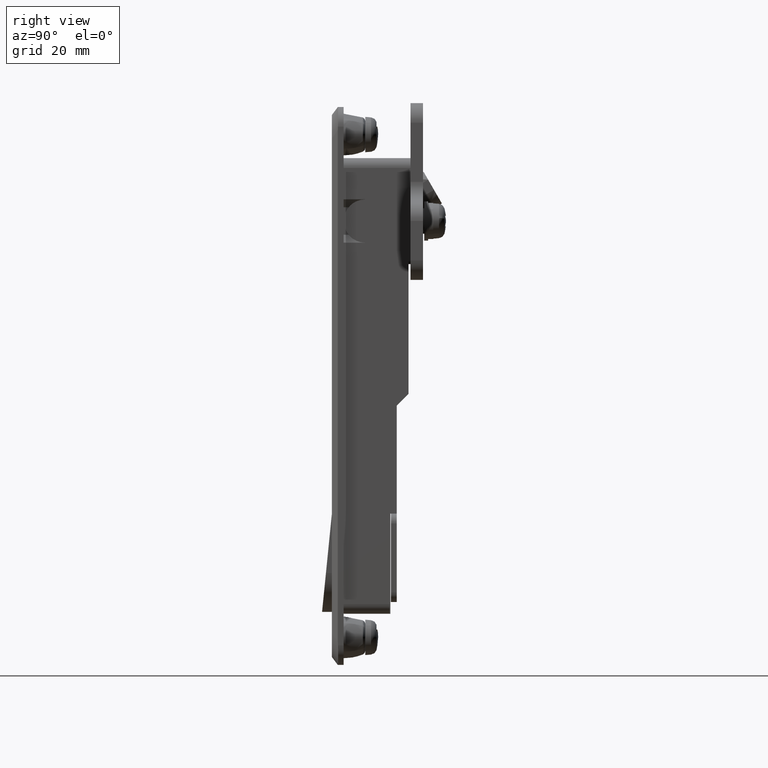
[diagram: clean part render]
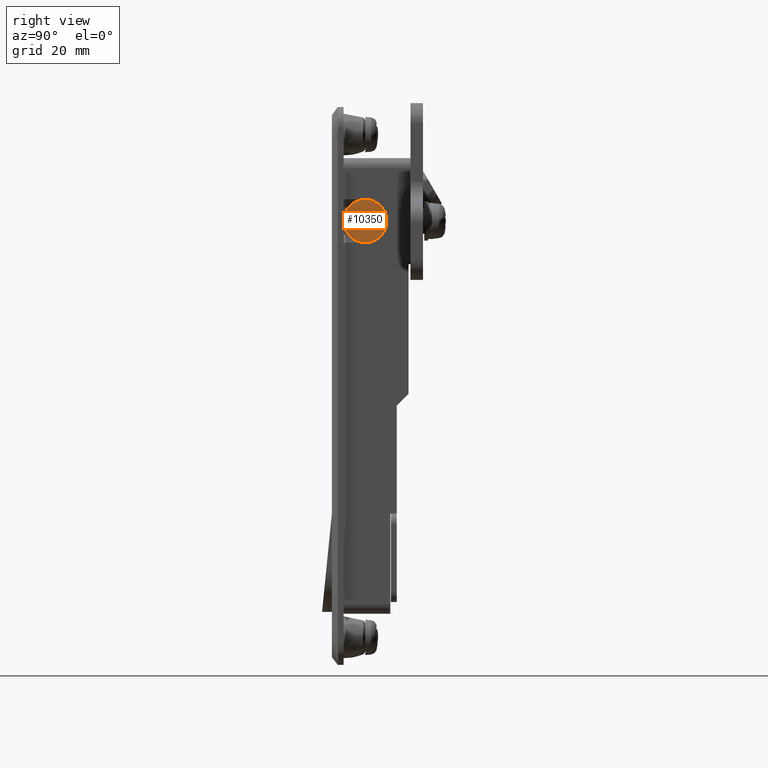
[diagram: same view with one face highlighted and labeled with its STEP entity id]
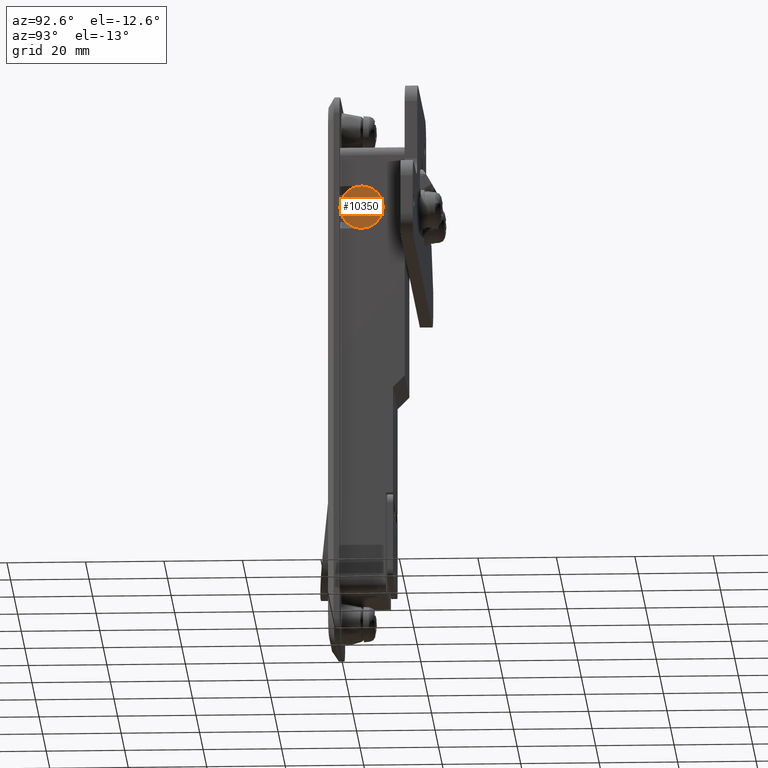
[diagram: same view with one face highlighted and labeled with its STEP entity id]
A machine part, right view. The second image highlights one B-rep face of the part: STEP entity #10350.
A second angle (auxiliary view) of the same face is appended — the face is thin or edge-on in the first view.
In plain terms, the highlighted face is a freeform B-spline surface patch.
Its self-contained STEP definition (entity closure, byte-faithful):
#10195=CARTESIAN_POINT('',(1.714050279736321,-13.0,-18.010441177057778));
#10196=VERTEX_POINT('',#10195);
#10202=CARTESIAN_POINT('',(5.500000000000200,-13.0,-16.500000000000000));
#10203=VERTEX_POINT('',#10202);
#10204=CARTESIAN_POINT('',(5.500000000000200,-13.0,-16.500000000000000));
#10205=CARTESIAN_POINT('',(5.065020151744795,-13.0,-16.499910231768670));
#10206=CARTESIAN_POINT('',(4.238634123952902,-13.000000000000011,-16.598554810251262));
#10207=CARTESIAN_POINT('',(2.920766175411349,-13.000000000000011,-17.070633883945121));
#10208=CARTESIAN_POINT('',(2.124046577551451,-12.999999999999989,-17.620962483432319));
#10209=CARTESIAN_POINT('',(1.714050279736321,-13.0,-18.010441177057778));
#10210=B_SPLINE_CURVE_WITH_KNOTS('',3,(#10204,#10205,#10206,#10207,#10208,#10209),.UNSPECIFIED.,.F.,.U.,(4,1,1,4),(0.000000047043503,1.304921350460602,2.479323922983845,4.175724368367582),.UNSPECIFIED.);
#10211=EDGE_CURVE('',#10203,#10196,#10210,.T.);
#10213=CARTESIAN_POINT('',(10.999999999999890,-13.0,-21.999998137841509));
#10214=VERTEX_POINT('',#10213);
#10215=CARTESIAN_POINT('',(10.999999999999890,-13.0,-21.999998137841509));
#10216=CARTESIAN_POINT('',(11.000454562450610,-13.000000000000060,-21.369972154815660));
#10217=CARTESIAN_POINT('',(10.835801011711510,-12.999999999999909,-20.425378296263592));
#10218=CARTESIAN_POINT('',(10.224540354597760,-12.999999999999970,-19.090839469316489));
#10219=CARTESIAN_POINT('',(9.489512968312974,-13.000000000000130,-18.136945470761209));
#10220=CARTESIAN_POINT('',(8.430418523103480,-12.999999999999879,-17.289369246263931));
#10221=CARTESIAN_POINT('',(7.142253355047674,-13.000000000000140,-16.670265487941091));
#10222=CARTESIAN_POINT('',(6.084974450538085,-12.999999999999920,-16.499729691469799));
#10223=CARTESIAN_POINT('',(5.500000000000200,-13.0,-16.500000000000000));
#10224=B_SPLINE_CURVE_WITH_KNOTS('',3,(#10215,#10216,#10217,#10218,#10219,#10220,#10221,#10222,#10223),.UNSPECIFIED.,.F.,.U.,(4,1,1,1,1,1,4),(0.000000206293455,1.889869233256414,2.834822982455001,4.387149265008652,5.467110740448906,6.884557925452103,8.639432956282512),.UNSPECIFIED.);
#10225=EDGE_CURVE('',#10214,#10203,#10224,.T.);
#10227=CARTESIAN_POINT('',(5.500000000000200,-13.0,-27.500000000000000));
#10228=VERTEX_POINT('',#10227);
#10229=CARTESIAN_POINT('',(5.500000000000200,-13.0,-27.500000000000000));
#10230=CARTESIAN_POINT('',(6.084999274924356,-12.999999999999989,-27.500346667131399));
#10231=CARTESIAN_POINT('',(7.187215274541615,-13.000000000000011,-27.322400877878248));
#10232=CARTESIAN_POINT('',(8.449508335475954,-12.999999999999980,-26.696784261226760));
#10233=CARTESIAN_POINT('',(9.413834708344963,-13.0,-25.915030990637590));
#10234=CARTESIAN_POINT('',(10.137725068513561,-12.999999999999890,-25.044021283719282));
#10235=CARTESIAN_POINT('',(10.809477938769771,-13.000000000000160,-23.709551675585669));
#10236=CARTESIAN_POINT('',(11.000558394034980,-12.999999999999920,-22.652541314410410));
#10237=CARTESIAN_POINT('',(10.999999999999890,-13.0,-21.999998137841509));
#10238=B_SPLINE_CURVE_WITH_KNOTS('',3,(#10229,#10230,#10231,#10232,#10233,#10234,#10235,#10236,#10237),.UNSPECIFIED.,.F.,.U.,(4,1,1,1,1,1,4),(0.000000205633805,1.754876898125263,3.307314648912356,4.184752530653539,5.467112070100423,6.682066389835865,8.639435055382362),.UNSPECIFIED.);
#10239=EDGE_CURVE('',#10228,#10214,#10238,.T.);
#10241=CARTESIAN_POINT('',(1.300443518400412,-13.0,-25.551581395337770));
#10242=VERTEX_POINT('',#10241);
#10243=CARTESIAN_POINT('',(1.300443518400412,-13.0,-25.551581395337770));
#10244=CARTESIAN_POINT('',(1.653840700228975,-13.0,-25.969814128625529));
#10245=CARTESIAN_POINT('',(2.486908058727043,-13.000000000000020,-26.699324128039219));
#10246=CARTESIAN_POINT('',(3.956988585696002,-13.0,-27.357255266551981));
#10247=CARTESIAN_POINT('',(5.002242308499738,-12.999999999999980,-27.500133578262819));
#10248=CARTESIAN_POINT('',(5.500000000000200,-13.0,-27.500000000000000));
#10249=B_SPLINE_CURVE_WITH_KNOTS('',3,(#10243,#10244,#10245,#10246,#10247,#10248),.UNSPECIFIED.,.F.,.U.,(4,1,1,4),(0.000000063827738,1.642602217106255,3.285172708956799,4.778445959637131),.UNSPECIFIED.);
#10250=EDGE_CURVE('',#10242,#10228,#10249,.T.);
#10276=CARTESIAN_POINT('',(5.156000E-013,-13.0,-22.000001862158420));
#10277=VERTEX_POINT('',#10276);
#10278=CARTESIAN_POINT('',(5.156000E-013,-13.0,-22.000001862158420));
#10279=CARTESIAN_POINT('',(-0.000168656705775,-13.000000000000011,-22.522852996483110));
#10280=CARTESIAN_POINT('',(0.132878938895308,-12.999999999999989,-23.447788161190282));
#10281=CARTESIAN_POINT('',(0.631058204863014,-13.000000000000011,-24.642863398270588));
#10282=CARTESIAN_POINT('',(1.066679298848686,-12.999999999999980,-25.275224648376341));
#10283=CARTESIAN_POINT('',(1.300443518400412,-13.0,-25.551581395337770));
#10284=B_SPLINE_CURVE_WITH_KNOTS('',3,(#10278,#10279,#10280,#10281,#10282,#10283),.UNSPECIFIED.,.F.,.U.,(4,1,1,4),(0.000000018566396,1.568550687875091,2.775127089447240,3.861046429247384),.UNSPECIFIED.);
#10285=EDGE_CURVE('',#10277,#10242,#10284,.T.);
#10287=CARTESIAN_POINT('',(1.714050279736321,-13.0,-18.010441177057778));
#10288=CARTESIAN_POINT('',(1.444209442028698,-12.999999999999989,-18.266464682558230));
#10289=CARTESIAN_POINT('',(0.895745022884864,-13.000000000000011,-18.904366146137150));
#10290=CARTESIAN_POINT('',(0.200542986347862,-13.000000000000030,-20.233410979981890));
#10291=CARTESIAN_POINT('',(-0.000533130943810,-12.999999999999989,-21.348971211445988));
#10292=CARTESIAN_POINT('',(5.156000E-013,-13.0,-22.000001862158420));
#10293=B_SPLINE_CURVE_WITH_KNOTS('',3,(#10287,#10288,#10289,#10290,#10291,#10292),.UNSPECIFIED.,.F.,.U.,(4,1,1,4),(0.000000058184757,1.115927848792476,2.510817659027733,4.463711315118893),.UNSPECIFIED.);
#10294=EDGE_CURVE('',#10196,#10277,#10293,.T.);
#10337=CARTESIAN_POINT('',(-0.549449978679317,-13.0,-28.049449978679860));
#10338=CARTESIAN_POINT('',(-0.549449978679317,-13.0,-15.950549726277140));
#10339=CARTESIAN_POINT('',(11.549450273722710,-13.0,-28.049449978679860));
#10340=CARTESIAN_POINT('',(11.549450273722710,-13.0,-15.950549726277140));
#10341=B_SPLINE_SURFACE_WITH_KNOTS('',1,1,((#10337,#10339),(#10338,#10340)),.UNSPECIFIED.,.F.,.F.,.U.,(2,2),(2,2),(0.0,12.098900252402720),(0.0,12.098900252402030),.UNSPECIFIED.);
#10342=ORIENTED_EDGE('',*,*,#10239,.T.);
#10343=ORIENTED_EDGE('',*,*,#10225,.T.);
#10344=ORIENTED_EDGE('',*,*,#10211,.T.);
#10345=ORIENTED_EDGE('',*,*,#10294,.T.);
#10346=ORIENTED_EDGE('',*,*,#10285,.T.);
#10347=ORIENTED_EDGE('',*,*,#10250,.T.);
#10348=EDGE_LOOP('',(#10342,#10343,#10344,#10345,#10346,#10347));
#10349=FACE_OUTER_BOUND('',#10348,.T.);
#10350=ADVANCED_FACE('',(#10349),#10341,.F.);